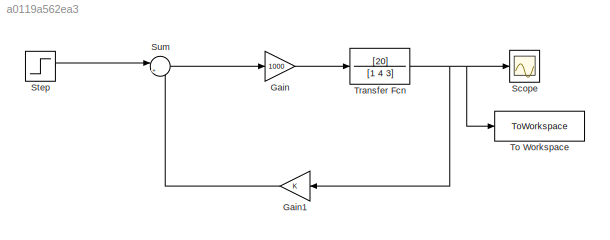
MODEL slx_a0119a562ea3
KIND model
CONFIG AbsTol = auto
CONFIG EnableMultiTasking = off
CONFIG FixedStep = auto
CONFIG MaxStep = auto
CONFIG MinStep = auto
CONFIG RelTol = 1e-3
CONFIG SampleTimeConstraint = Unconstrained
CONFIG SolverName = VariableStepAuto
CONFIG StartTime = 0.0
CONFIG StopTime = 3000
BLOCK [Gain] Gain
  Gain = 1000
BLOCK [Gain] Gain1
  NameLocation = top
BLOCK [Scope] Scope
  Floating = off
  NumInputPorts = 1
  Ports = [1]
  ScopeSpecificationString = Simulink.scopes.TimeScopeBlockCfg('CurrentConfiguration', extmgr.ConfigurationSet(extmgr.Configuration('Core','General UI',true),extmgr.Configuration('Core','Source UI',true),extmgr.Configuration('Sources','WiredSimulink',true),extmgr.Configuration('Visuals','Time Domain',true,'SerializedDisplays',{struct('MinYLimReal','-0.18587','MaxYLimReal','1.67279','YLabelReal','','MinYLimMag','0.00000','MaxY...<+1362ch>
BLOCK [Step] Step
  SampleTime = 0
  Time = 0
BLOCK [Sum] Sum
  Inputs = |+-
  Ports = [2, 1]
BLOCK [ToWorkspace] To Workspace
  FixptAsFi = on
  MaxDataPoints = inf
  Ports = [1]
  SampleTime = -1
  SaveFormat = Timeseries
  StopFcn = t=out.simout.Time(:,1);\ny=out.simout.Data(:,1);\n% t=0:.05:15;\nG=tf(10,[1 1 9]);\nu=ones(size(t));\n%y=lsim(G,u,t);\nplot(t,y,'-r')\ny_ss=y(end);% steady state value\na=find(abs(y-.1*y_ss) < 0.1,1);\nb=find(abs(y-.9*y_ss) < 0.1,1);\nRise_time=t(b)-t(a);\ny_max=max(y)\nc=find(y==y_max);\nPeak_time=t(c)\nOS=((y_max-y_ss)/y_ss)*100\nError=1-y_ss;\nd=find(abs(y-y_ss) < .02*y_ss);\nj=1;\nfor i=1:length(d)\n    if (abs(...<+357ch>
  VariableName = simout
BLOCK [TransferFcn] Transfer Fcn
  Denominator = [1 4 3]
  Numerator = [20]
LINE Gain1:1 -> Sum:2
LINE Gain:1 -> Transfer Fcn:1
LINE Step:1 -> Sum:1
LINE Sum:1 -> Gain:1
NET Transfer Fcn:1 -> Gain1:1, Scope:1, To Workspace:1
note: NET lines group one-source signal fan-out (src -> all destinations, sorted); 1:1 wires keep LINE
